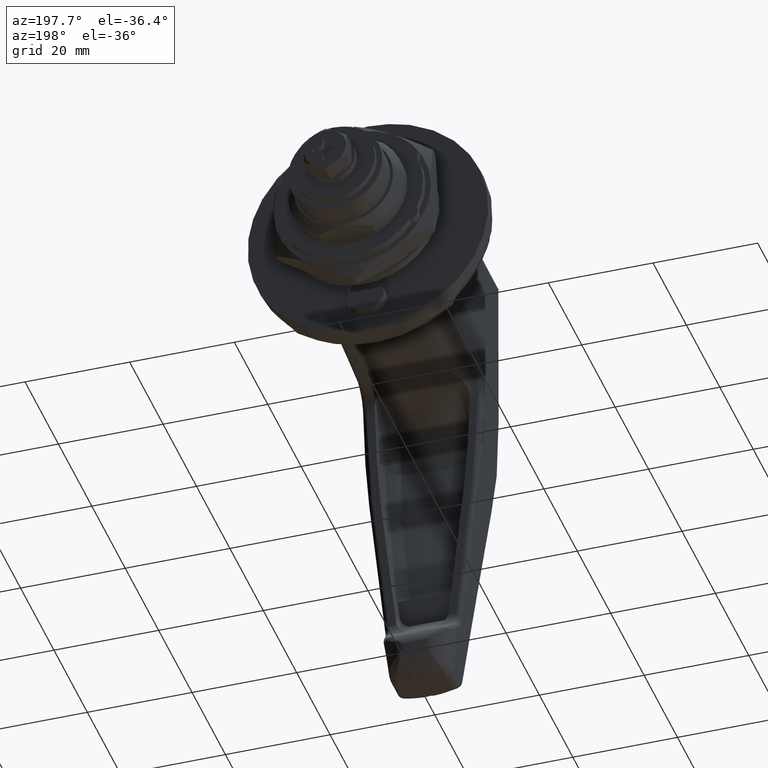
[diagram: clean part render]
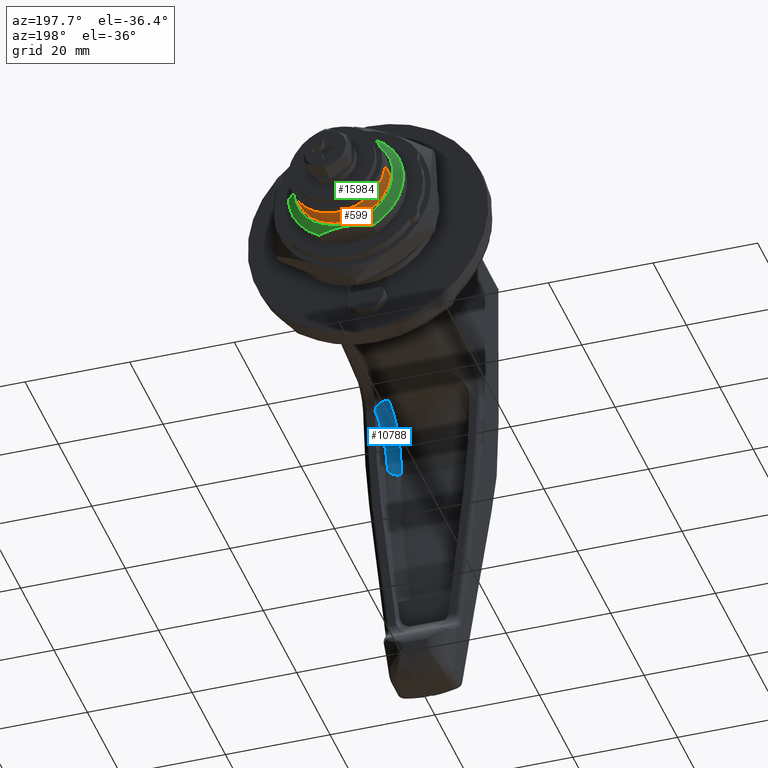
[diagram: same view with three faces highlighted in distinct colors, each labeled with its STEP entity id]
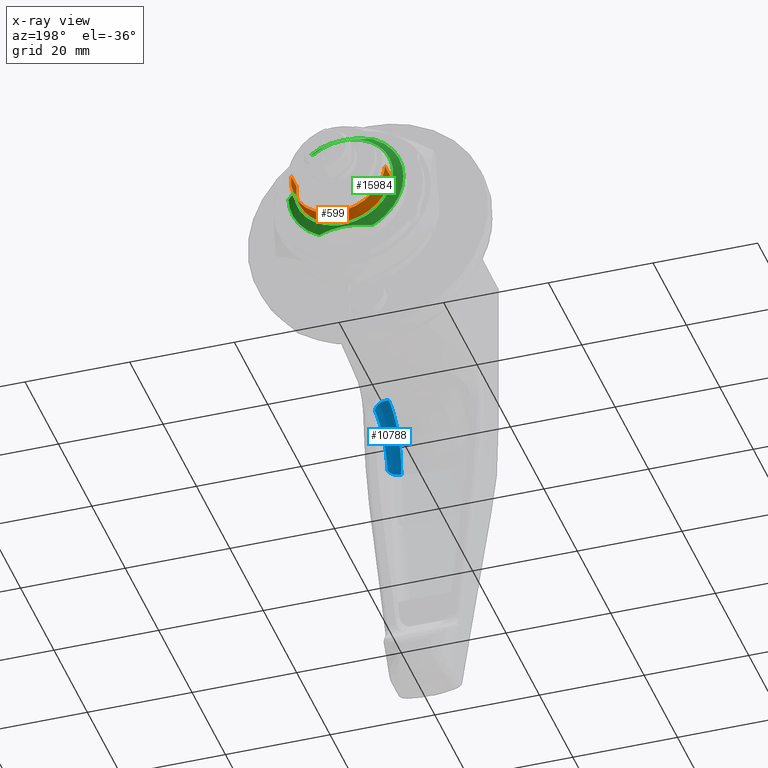
[diagram: x-ray of the same camera — body ghosted, the three highlighted faces saturated]
A machine part, auxiliary view with three faces highlighted in distinct colors.
The next image is the same camera in x-ray (body ghosted, the three faces saturated) — at least one of them is partly hidden behind the body in this view.
Their STEP definitions:

[orange] entity #599 — the highlighted face is a freeform B-spline surface patch.
#493=CARTESIAN_POINT('',(88.288713000000172,-8.921320672684832,1.194937932110707));
#494=CARTESIAN_POINT('',(88.288713000000172,-8.929225431262870,1.128436034636437));
#495=CARTESIAN_POINT('',(88.288713000000172,-8.967488539037619,0.806532557741814));
#496=CARTESIAN_POINT('',(88.288713000000186,-8.983213185796970,0.549436855813723));
#497=CARTESIAN_POINT('',(88.288713000000186,-9.532650041610694,-8.433776329983246));
#498=CARTESIAN_POINT('',(88.288713000000186,-0.549436855813723,-8.983213185796970));
#499=CARTESIAN_POINT('',(88.288713000000186,8.433776329983246,-9.532650041610694));
#500=CARTESIAN_POINT('',(88.288713000000158,8.987164704234168,-0.484830100454323));
#501=CARTESIAN_POINT('',(88.288713000000200,8.991092749449317,-0.420607128883147));
#502=CARTESIAN_POINT('',(91.650713000000209,-8.921320672684832,1.194937932110707));
#503=CARTESIAN_POINT('',(91.650713000000209,-8.929225431262870,1.128436034636437));
#504=CARTESIAN_POINT('',(91.650713000000195,-8.967488539037619,0.806532557741814));
#505=CARTESIAN_POINT('',(91.650713000000195,-8.983213185796970,0.549436855813723));
#506=CARTESIAN_POINT('',(91.650713000000195,-9.532650041610694,-8.433776329983246));
#507=CARTESIAN_POINT('',(91.650713000000195,-0.549436855813723,-8.983213185796970));
#508=CARTESIAN_POINT('',(91.650713000000195,8.433776329983246,-9.532650041610694));
#509=CARTESIAN_POINT('',(91.650713000000167,8.987164704234168,-0.484830100454323));
#510=CARTESIAN_POINT('',(91.650713000000209,8.991092749449317,-0.420607128883147));
#518=(BOUNDED_SURFACE()B_SPLINE_SURFACE(2,1,((#493,#502),(#494,#503),(#495,#504),(#496,#505),(#497,#506),(#498,#507),(#499,#508),(#500,#509),(#501,#510)),.UNSPECIFIED.,.F.,.F.,.U.)B_SPLINE_SURFACE_WITH_KNOTS((3,1,2,2,1,3),(2,2),(0.0,0.152099315940655,0.748566845757924,15.660255091189621,30.571943336621320,30.724062431251479),(0.0,3.362000000000042),.UNSPECIFIED.)GEOMETRIC_REPRESENTATION_ITEM()RATIONAL_B_SPLINE_SURFACE(((0.972008777400780,0.972008777400780),(0.974757289097954,0.974757289097954),(0.988284271247462,0.988284271247462),(1.0,1.0),(0.707106781186548,0.707106781186548),(1.0,1.0),(0.707106781186548,0.707106781186548),(1.002987901204471,1.002987901204471),(1.005975802408941,1.005975802408941)))REPRESENTATION_ITEM('')SURFACE());
#519=CARTESIAN_POINT('',(91.568713000000173,-8.937085737238114,1.062308112205726));
#520=VERTEX_POINT('',#519);
#521=CARTESIAN_POINT('',(91.568713000000187,0.0,-9.000000000000169));
#522=VERTEX_POINT('',#521);
#523=CARTESIAN_POINT('',(91.568713000000173,-8.937085737238114,1.062308112205726));
#524=CARTESIAN_POINT('',(91.568713000000187,-9.000000000000169,0.533017077165199));
#525=CARTESIAN_POINT('',(91.568713000000187,-9.000000000000169,0.0));
#526=CARTESIAN_POINT('',(91.568713000000187,-9.000000000000171,-9.000000000000171));
#527=CARTESIAN_POINT('',(91.568713000000187,0.0,-9.000000000000169));
#535=(BOUNDED_CURVE()B_SPLINE_CURVE(2,(#523,#524,#525,#526,#527),.UNSPECIFIED.,.F.,.U.)B_SPLINE_CURVE_WITH_KNOTS((3,2,3),(0.229562473504492,0.250000000000000,0.500000000000000),.UNSPECIFIED.)CURVE()GEOMETRIC_REPRESENTATION_ITEM()RATIONAL_B_SPLINE_CURVE((0.956026754166026,0.976055948320581,1.0,0.707106781186548,1.0))REPRESENTATION_ITEM(''));
#536=EDGE_CURVE('',#520,#522,#535,.T.);
#537=ORIENTED_EDGE('',*,*,#536,.F.);
#538=CARTESIAN_POINT('',(88.368713000000184,-8.937085737238114,1.062308112205726));
#539=VERTEX_POINT('',#538);
#540=CARTESIAN_POINT('',(88.368713000000184,-8.937085737238114,1.062308112205726));
#541=CARTESIAN_POINT('',(91.568713000000173,-8.937085737238114,1.062308112205726));
#542=QUASI_UNIFORM_CURVE('',1,(#540,#541),.UNSPECIFIED.,.F.,.U.);
#543=EDGE_CURVE('',#539,#520,#542,.T.);
#544=ORIENTED_EDGE('',*,*,#543,.F.);
#545=CARTESIAN_POINT('',(88.368713000000199,0.0,-9.000000000000169));
#546=VERTEX_POINT('',#545);
#547=CARTESIAN_POINT('',(88.368713000000184,-8.937085737238114,1.062308112205726));
#548=CARTESIAN_POINT('',(88.368713000000184,-9.000000000000169,0.533017077165199));
#549=CARTESIAN_POINT('',(88.368713000000199,-9.000000000000169,0.0));
#550=CARTESIAN_POINT('',(88.368713000000199,-9.000000000000171,-9.000000000000171));
#551=CARTESIAN_POINT('',(88.368713000000199,0.0,-9.000000000000169));
#559=(BOUNDED_CURVE()B_SPLINE_CURVE(2,(#547,#548,#549,#550,#551),.UNSPECIFIED.,.F.,.U.)B_SPLINE_CURVE_WITH_KNOTS((3,2,3),(0.229562473504492,0.250000000000000,0.500000000000000),.UNSPECIFIED.)CURVE()GEOMETRIC_REPRESENTATION_ITEM()RATIONAL_B_SPLINE_CURVE((0.956026754166026,0.976055948320581,1.0,0.707106781186548,1.0))REPRESENTATION_ITEM(''));
#560=EDGE_CURVE('',#539,#546,#559,.T.);
#561=ORIENTED_EDGE('',*,*,#560,.T.);
#562=CARTESIAN_POINT('',(88.368713000000199,8.983214216414687,-0.549420004844264));
#563=VERTEX_POINT('',#562);
#564=CARTESIAN_POINT('',(88.368713000000199,0.0,-9.000000000000169));
#565=CARTESIAN_POINT('',(88.368713000000199,8.466370513272327,-9.000000000000169));
#566=CARTESIAN_POINT('',(88.368713000000199,8.983214216414687,-0.549420004844264));
#574=(BOUNDED_CURVE()B_SPLINE_CURVE(2,(#564,#565,#566),.UNSPECIFIED.,.F.,.U.)B_SPLINE_CURVE_WITH_KNOTS((3,3),(0.500000000000000,0.739333285910273),.UNSPECIFIED.)CURVE()GEOMETRIC_REPRESENTATION_ITEM()RATIONAL_B_SPLINE_CURVE((1.0,0.719603614082159,0.976072735356974))REPRESENTATION_ITEM(''));
#575=EDGE_CURVE('',#546,#563,#574,.T.);
#576=ORIENTED_EDGE('',*,*,#575,.T.);
#577=CARTESIAN_POINT('',(91.568713000000201,8.983213185794718,-0.549436855850556));
#578=VERTEX_POINT('',#577);
#579=CARTESIAN_POINT('',(88.368713000000199,8.983214216414687,-0.549420004844264));
#580=CARTESIAN_POINT('',(91.568713000000201,8.983213185794718,-0.549436855850556));
#581=QUASI_UNIFORM_CURVE('',1,(#579,#580),.UNSPECIFIED.,.F.,.U.);
#582=EDGE_CURVE('',#563,#578,#581,.T.);
#583=ORIENTED_EDGE('',*,*,#582,.T.);
#584=CARTESIAN_POINT('',(91.568713000000187,0.0,-9.000000000000169));
#585=CARTESIAN_POINT('',(91.568713000000187,8.466354602081822,-9.000000000000169));
#586=CARTESIAN_POINT('',(91.568713000000201,8.983213185794718,-0.549436855850556));
#594=(BOUNDED_CURVE()B_SPLINE_CURVE(2,(#584,#585,#586),.UNSPECIFIED.,.F.,.U.)B_SPLINE_CURVE_WITH_KNOTS((3,3),(0.500000000000000,0.739332962240553),.UNSPECIFIED.)CURVE()GEOMETRIC_REPRESENTATION_ITEM()RATIONAL_B_SPLINE_CURVE((1.0,0.719603993284824,0.976072041670168))REPRESENTATION_ITEM(''));
#595=EDGE_CURVE('',#522,#578,#594,.T.);
#596=ORIENTED_EDGE('',*,*,#595,.F.);
#597=EDGE_LOOP('',(#537,#544,#561,#576,#583,#596));
#598=FACE_OUTER_BOUND('',#597,.T.);
#599=ADVANCED_FACE('',(#598),#518,.T.);

[blue] entity #10788 — the highlighted face is a freeform B-spline surface patch.
#10508=CARTESIAN_POINT('',(-39.333117843114103,-8.831410608772609,-25.158700089596849));
#10509=VERTEX_POINT('',#10508);
#10510=CARTESIAN_POINT('',(-41.331410608772551,-6.833117843114151,-25.158700089596849));
#10511=VERTEX_POINT('',#10510);
#10512=CARTESIAN_POINT('',(-39.333117843114103,-8.831410608772607,-25.158700089596859));
#10513=CARTESIAN_POINT('',(-41.328006320256804,-8.828006320256858,-25.241038335586477));
#10514=CARTESIAN_POINT('',(-41.331410608772558,-6.833117843114151,-25.158700089596859));
#10522=(BOUNDED_CURVE()B_SPLINE_CURVE(2,(#10512,#10513,#10514),.UNSPECIFIED.,.F.,.U.)CURVE()GEOMETRIC_REPRESENTATION_ITEM()QUASI_UNIFORM_CURVE()RATIONAL_B_SPLINE_CURVE((1.0,0.707709864873759,1.0))REPRESENTATION_ITEM(''));
#10523=EDGE_CURVE('',#10509,#10511,#10522,.T.);
#10555=CARTESIAN_POINT('',(-32.548025646062356,-6.417647187119143,-14.613107388346453));
#10556=CARTESIAN_POINT('',(-32.573232998046528,-6.417824825438465,-14.616392705329506));
#10557=CARTESIAN_POINT('',(-32.598440365108097,-6.418002463864033,-14.619678024277619));
#10558=CARTESIAN_POINT('',(-33.253837173630195,-6.422621100031212,-14.705097003114750));
#10559=CARTESIAN_POINT('',(-33.865254533106103,-6.431573230930810,-14.846504662455724));
#10560=CARTESIAN_POINT('',(-34.755536906230802,-6.450655071228795,-15.143099416156218));
#10561=CARTESIAN_POINT('',(-35.047801043604359,-6.457959397837252,-15.256145457496475));
#10562=CARTESIAN_POINT('',(-35.623217959514257,-6.474276933745760,-15.511025917120607));
#10563=CARTESIAN_POINT('',(-35.907408005555432,-6.483334532200020,-15.653587475674072));
#10564=CARTESIAN_POINT('',(-36.729003979493157,-6.512167086660505,-16.115992054843737));
#10565=CARTESIAN_POINT('',(-37.240836949331474,-6.533708160643559,-16.472018693853041));
#10566=CARTESIAN_POINT('',(-38.195093229206037,-6.579184741243886,-17.276805054570112));
#10567=CARTESIAN_POINT('',(-38.639808627840694,-6.603303820965008,-17.729820175962555));
#10568=CARTESIAN_POINT('',(-39.426261650204026,-6.650028031990056,-18.695075600091087));
#10569=CARTESIAN_POINT('',(-39.772529572371042,-6.672823874220127,-19.210114592445603));
#10570=CARTESIAN_POINT('',(-40.221857239401452,-6.704833503672138,-20.031188403519675));
#10571=CARTESIAN_POINT('',(-40.360340526525029,-6.715180878194455,-20.314296313868471));
#10572=CARTESIAN_POINT('',(-40.608768996496934,-6.734602886786547,-20.886921756852807));
#10573=CARTESIAN_POINT('',(-40.719279773092715,-6.743714134545338,-21.177214715109105));
#10574=CARTESIAN_POINT('',(-41.010776068131634,-6.769090688850012,-22.059729241129236));
#10575=CARTESIAN_POINT('',(-41.152055842815287,-6.783395252515284,-22.663495827904686));
#10576=CARTESIAN_POINT('',(-41.326032616078258,-6.806015365797347,-23.902564227524991));
#10577=CARTESIAN_POINT('',(-41.357094415294306,-6.814178795931657,-24.532312553036313));
#10578=CARTESIAN_POINT('',(-41.330408225175212,-6.819209997763043,-25.183151695092008));
#10579=CARTESIAN_POINT('',(-41.329381773060604,-6.819403516872955,-25.208185437662646));
#10580=CARTESIAN_POINT('',(-41.328355316485819,-6.819597036823754,-25.233219289010741));
#10581=CARTESIAN_POINT('',(-32.548301396231849,-6.425289503552213,-14.610867403635096));
#10582=CARTESIAN_POINT('',(-32.573514660482786,-6.425467133203112,-14.614154247610941));
#10583=CARTESIAN_POINT('',(-32.598727932289336,-6.425644762907249,-14.617441092571759));
#10584=CARTESIAN_POINT('',(-33.254275623969981,-6.430263153706062,-14.702899403714742));
#10585=CARTESIAN_POINT('',(-33.865827392065739,-6.439214332164756,-14.844378133310045));
#10586=CARTESIAN_POINT('',(-34.756282345149415,-6.458292714579645,-15.141117627057030));
#10587=CARTESIAN_POINT('',(-35.048599410461684,-6.465595437974527,-15.254218554770942));
#10588=CARTESIAN_POINT('',(-35.624111015276256,-6.481908630810737,-15.509219733112252));
#10589=CARTESIAN_POINT('',(-35.908342896460617,-6.490963420679638,-15.651847555613049));
#10590=CARTESIAN_POINT('',(-36.730043847982998,-6.519785168554834,-16.114460559887849));
#10591=CARTESIAN_POINT('',(-37.241919396203912,-6.541316001560373,-16.470638990123351));
#10592=CARTESIAN_POINT('',(-38.196208301690682,-6.586763782091015,-17.275735164704297));
#10593=CARTESIAN_POINT('',(-38.640912430883859,-6.610863654818115,-17.728909790954312));
#10594=CARTESIAN_POINT('',(-39.427297441150330,-6.657540413815106,-18.694463673434694));
#10595=CARTESIAN_POINT('',(-39.773508386254612,-6.680307649201205,-19.209642913952294));
#10596=CARTESIAN_POINT('',(-40.222725518677073,-6.712267447806776,-20.030905624282457));
#10597=CARTESIAN_POINT('',(-40.361167173506431,-6.722596611193091,-20.314073497508314));
#10598=CARTESIAN_POINT('',(-40.609506588048802,-6.741980249971777,-20.886809056787861));
#10599=CARTESIAN_POINT('',(-40.719969816317032,-6.751071286767519,-21.177152312627086));
#10600=CARTESIAN_POINT('',(-41.011316242455983,-6.776383618862591,-22.059803963460087));
#10601=CARTESIAN_POINT('',(-41.152487739797273,-6.790641901406310,-22.663641896803092));
#10602=CARTESIAN_POINT('',(-41.326241586554282,-6.813162300317285,-23.902813583826578));
#10603=CARTESIAN_POINT('',(-41.357189828150176,-6.821272772642990,-24.532592463316615));
#10604=CARTESIAN_POINT('',(-41.330391942469404,-6.826248222864110,-25.183442004994749));
#10605=CARTESIAN_POINT('',(-41.329361224305970,-6.826439591951034,-25.208475414431156));
#10606=CARTESIAN_POINT('',(-41.328330503899892,-6.826630961454335,-25.233508878334899));
#10607=CARTESIAN_POINT('',(-32.640941440729684,-8.992774904490231,-13.858330120584245));
#10608=CARTESIAN_POINT('',(-32.668136210975277,-8.992820521066777,-13.862167781702762));
#10609=CARTESIAN_POINT('',(-32.695328262749797,-8.992866133083354,-13.866005059197130));
#10610=CARTESIAN_POINT('',(-33.401368729803508,-8.994050447152542,-13.965639806026886));
#10611=CARTESIAN_POINT('',(-34.057510447957185,-8.995986134705550,-14.132824969640911));
#10612=CARTESIAN_POINT('',(-35.004288177999840,-8.999319286815613,-14.481780901018359));
#10613=CARTESIAN_POINT('',(-35.313629735252583,-9.000498007058617,-14.614553154700321));
#10614=CARTESIAN_POINT('',(-35.919105491990088,-9.002813346833248,-14.912600429973624));
#10615=CARTESIAN_POINT('',(-36.216300098339651,-9.003953050440311,-15.078710186825013));
#10616=CARTESIAN_POINT('',(-37.069539182674198,-9.006929733155980,-15.614459456189149));
#10617=CARTESIAN_POINT('',(-37.592930273754945,-9.008351552680557,-16.023235030397235));
#10618=CARTESIAN_POINT('',(-38.552490313349658,-9.008378481222037,-16.933889662384761));
#10619=CARTESIAN_POINT('',(-38.990759460372573,-9.006930084717391,-17.440366021483008));
#10620=CARTESIAN_POINT('',(-39.750222230623379,-8.999648469502011,-18.503685517471673));
#10621=CARTESIAN_POINT('',(-40.076099385395850,-8.993845479877541,-19.063827995551460));
#10622=CARTESIAN_POINT('',(-40.487697948028384,-8.980881121201552,-19.944610000793794));
#10623=CARTESIAN_POINT('',(-40.612338509252098,-8.975819092708624,-20.246372188406742));
#10624=CARTESIAN_POINT('',(-40.831695550549142,-8.964305963856523,-20.852859765426839));
#10625=CARTESIAN_POINT('',(-40.926948183467921,-8.957848051200577,-21.158434697001475));
#10626=CARTESIAN_POINT('',(-41.171295206279552,-8.936270407361247,-22.081933858429473));
#10627=CARTESIAN_POINT('',(-41.279334026626515,-8.918951526273945,-22.706541704299177));
#10628=CARTESIAN_POINT('',(-41.386611140508819,-8.877842715367985,-23.974850213068468));
#10629=CARTESIAN_POINT('',(-41.384532298665988,-8.854194304195522,-24.612806377018938));
#10630=CARTESIAN_POINT('',(-41.325763343998503,-8.826967169270349,-25.265966862388314));
#10631=CARTESIAN_POINT('',(-41.323521745665182,-8.825928656664258,-25.290880074877315));
#10632=CARTESIAN_POINT('',(-41.321281523987508,-8.824890781850499,-25.315777987161169));
#10633=CARTESIAN_POINT('',(-32.310783989369789,-8.999404953581481,-16.515055286114009));
#10634=CARTESIAN_POINT('',(-32.330936793453972,-8.999411460716527,-16.517750436075918));
#10635=CARTESIAN_POINT('',(-32.351089603568262,-8.999417967853509,-16.520445586844254));
#10636=CARTESIAN_POINT('',(-32.875064761302490,-8.999587154091451,-16.590519786965618));
#10637=CARTESIAN_POINT('',(-33.363830047492485,-8.999849620703316,-16.706848467454076));
#10638=CARTESIAN_POINT('',(-34.075443523868174,-9.000010813633898,-16.950974416636249));
#10639=CARTESIAN_POINT('',(-34.309039876194603,-9.000023079465569,-17.044036888633588));
#10640=CARTESIAN_POINT('',(-34.768921879289671,-8.999864839798713,-17.253851171246428));
#10641=CARTESIAN_POINT('',(-34.996036129727031,-8.999692012094199,-17.371201172527687));
#10642=CARTESIAN_POINT('',(-35.652580322278041,-8.998732275079433,-17.751756227256028));
#10643=CARTESIAN_POINT('',(-36.061530941039010,-8.997514212493478,-18.044671683622251));
#10644=CARTESIAN_POINT('',(-36.823859906236223,-8.992906071924692,-18.706311340600891));
#10645=CARTESIAN_POINT('',(-37.179067110170976,-8.989459821550819,-19.078524046380895));
#10646=CARTESIAN_POINT('',(-37.807111640874218,-8.979529839854804,-19.870937809318306));
#10647=CARTESIAN_POINT('',(-38.083568957327515,-8.973047743365965,-20.293443477780016));
#10648=CARTESIAN_POINT('',(-38.442212146675089,-8.960294213683044,-20.966428339665857));
#10649=CARTESIAN_POINT('',(-38.552726754176014,-8.955510420923313,-21.198383016977704));
#10650=CARTESIAN_POINT('',(-38.750942175970984,-8.944981749770811,-21.667354062179463));
#10651=CARTESIAN_POINT('',(-38.839094708745499,-8.939228381654692,-21.905006728117772));
#10652=CARTESIAN_POINT('',(-39.071546785928426,-8.920405366999953,-22.627210456660350));
#10653=CARTESIAN_POINT('',(-39.184108224810139,-8.905776821774365,-23.120936188211466));
#10654=CARTESIAN_POINT('',(-39.322443701693622,-8.871782326587445,-24.133450400999227));
#10655=CARTESIAN_POINT('',(-39.346915388361587,-8.852537359368766,-24.647697197979674));
#10656=CARTESIAN_POINT('',(-39.325233414811080,-8.830578027871534,-25.178838135566767));
#10657=CARTESIAN_POINT('',(-39.324399468310723,-8.829733413445169,-25.199267231888680));
#10658=CARTESIAN_POINT('',(-39.323565519998539,-8.828888797183831,-25.219696372593781));
#10659=CARTESIAN_POINT('',(-32.309802701618928,-8.999424659288369,-16.522951554550957));
#10660=CARTESIAN_POINT('',(-32.329934525307387,-8.999431051168118,-16.525643705656936));
#10661=CARTESIAN_POINT('',(-32.350066361019529,-8.999437443051683,-16.528335858370806));
#10662=CARTESIAN_POINT('',(-32.873498288086537,-8.999603633357507,-16.598332390387451));
#10663=CARTESIAN_POINT('',(-33.361759993680487,-8.999861149966527,-16.714529767301006));
#10664=CARTESIAN_POINT('',(-34.072655789060924,-9.000012889108389,-16.958385189448251));
#10665=CARTESIAN_POINT('',(-34.306018158303303,-9.000021650925168,-17.051344561908721));
#10666=CARTESIAN_POINT('',(-34.765444996551309,-8.999855926775519,-17.260928523243560));
#10667=CARTESIAN_POINT('',(-34.992337145130371,-8.999679095614148,-17.378150397500512));
#10668=CARTESIAN_POINT('',(-35.648246610952000,-8.998707203485687,-17.758293062927692));
#10669=CARTESIAN_POINT('',(-36.056815388677968,-8.997480841677644,-18.050896180511650));
#10670=CARTESIAN_POINT('',(-36.818457721944554,-8.992857718727787,-18.711850378042854));
#10671=CARTESIAN_POINT('',(-37.173359479562293,-8.989404782510233,-19.083684967264482));
#10672=CARTESIAN_POINT('',(-37.800888262763358,-8.979465404078459,-19.875316833358404));
#10673=CARTESIAN_POINT('',(-38.077133091426134,-8.972980566754080,-20.297415131232555));
#10674=CARTESIAN_POINT('',(-38.435519266163617,-8.960226852808665,-20.969771754732360));
#10675=CARTESIAN_POINT('',(-38.545958242115894,-8.955443680437121,-21.201511614762548));
#10676=CARTESIAN_POINT('',(-38.744044991210757,-8.944917694762413,-21.670053910090090));
#10677=CARTESIAN_POINT('',(-38.832144319341332,-8.939166397441966,-21.907492039657768));
#10678=CARTESIAN_POINT('',(-39.064467392517280,-8.920351877324181,-22.629048880501685));
#10679=CARTESIAN_POINT('',(-39.176984765727525,-8.905732029719800,-23.122345068413111));
#10680=CARTESIAN_POINT('',(-39.315309103743232,-8.871761379431437,-24.133998587427552));
#10681=CARTESIAN_POINT('',(-39.339815536951342,-8.852531585927245,-24.647818771197450));
#10682=CARTESIAN_POINT('',(-39.318206257673012,-8.830590711546206,-25.178532083032543));
#10683=CARTESIAN_POINT('',(-39.317375082882670,-8.829746782351304,-25.198945328658141));
#10684=CARTESIAN_POINT('',(-39.316543904486032,-8.828902849494783,-25.219358662852279));
#10692=(BOUNDED_SURFACE()B_SPLINE_SURFACE(3,2,((#10555,#10581,#10607,#10633,#10659),(#10556,#10582,#10608,#10634,#10660),(#10557,#10583,#10609,#10635,#10661),(#10558,#10584,#10610,#10636,#10662),(#10559,#10585,#10611,#10637,#10663),(#10560,#10586,#10612,#10638,#10664),(#10561,#10587,#10613,#10639,#10665),(#10562,#10588,#10614,#10640,#10666),(#10563,#10589,#10615,#10641,#10667),(#10564,#10590,#10616,#10642,#10668),(#10565,#10591,#10617,#10643,#10669),(#10566,#10592,#10618,#10644,#10670),(#10567,#10593,#10619,#10645,#10671),(#10568,#10594,#10620,#10646,#10672),(#10569,#10595,#10621,#10647,#10673),(#10570,#10596,#10622,#10648,#10674),(#10571,#10597,#10623,#10649,#10675),(#10572,#10598,#10624,#10650,#10676),(#10573,#10599,#10625,#10651,#10677),(#10574,#10600,#10626,#10652,#10678),(#10575,#10601,#10627,#10653,#10679),(#10576,#10602,#10628,#10654,#10680),(#10577,#10603,#10629,#10655,#10681),(#10578,#10604,#10630,#10656,#10682),(#10579,#10605,#10631,#10657,#10683),(#10580,#10606,#10632,#10658,#10684)),.UNSPECIFIED.,.F.,.F.,.U.)B_SPLINE_SURFACE_WITH_KNOTS((4,2,2,2,2,2,2,2,2,2,2,2,4),(3,1,1,3),(0.0,0.076281698587635,1.983324080670703,2.936845271712237,3.890366462753771,5.797408844836840,7.704451226919908,9.611493609002977,10.565014800044510,11.518535991086051,13.425578373169120,15.332620755252179,15.408902448855420),(0.0,0.020046060062172,4.022275903478657,4.042292095508789),.UNSPECIFIED.)GEOMETRIC_REPRESENTATION_ITEM()RATIONAL_B_SPLINE_SURFACE(((1.004010480632225,1.002005240316112,0.599650374613436,1.002002252567806,1.004004505135611),(1.004010180365057,1.002005090182529,0.599680349037705,1.002002102657916,1.004004205315833),(1.004009880097890,1.002004940048945,0.599710323461975,1.002001952748027,1.004003905496055),(1.004002073151862,1.002001036575931,0.600489658460520,1.001998055091072,1.003996110182144),(1.003986413485243,1.001993206742622,0.602052897942126,1.001990236923981,1.003980473847961),(1.003951996874739,1.001975998437370,0.605488565231416,1.001973054258591,1.003946108517181),(1.003938700299901,1.001969350149950,0.606815907074862,1.001966415876922,1.003932831753843),(1.003908606455044,1.001954303227522,0.609820050622592,1.001951391373959,1.003902782747919),(1.003891723879237,1.001945861939618,0.611505368049569,1.001942962663323,1.003885925326646),(1.003837172005418,1.001918586002709,0.616951055050800,1.001915727366747,1.003831454733493),(1.003795430664110,1.001897715332055,0.621117919795539,1.001894887792770,1.003789775585539),(1.003703303127117,1.001851651563559,0.630314629194001,1.001848892657916,1.003697785315831),(1.003652472458842,1.001826236229421,0.635388843700564,1.001823515191868,1.003647030383736),(1.003547383800917,1.001773691900458,0.645879407972222,1.001771049152390,1.003542098304780),(1.003492781049780,1.001746390524890,0.651330173844748,1.001743788455058,1.003487576910115),(1.003408437005855,1.001704218502928,0.659749889456349,1.001701679268151,1.003403358536301),(1.003379782957980,1.001689891478990,0.662610304051092,1.001687373591052,1.003374747182104),(1.003322702557157,1.001661351278579,0.668308403401772,1.001658875914689,1.003317751829377),(1.003294192539142,1.001647096269571,0.671154440093897,1.001644642145219,1.003289284290438),(1.003208776915678,1.001604388457839,0.679681127040384,1.001601997966854,1.003203995933708),(1.003151996161785,1.001575998080893,0.685349313882452,1.001573649890723,1.003147299781447),(1.003038586564209,1.001519293282104,0.696670523001426,1.001517029580395,1.003034059160790),(1.002982474654922,1.001491237327461,0.702271941864383,1.001489015428288,1.002978030856576),(1.002925821592579,1.001462910796290,0.707927381789345,1.001460731102804,1.002921462205608),(1.002923642628689,1.001461821314345,0.708144898704930,1.001459643244154,1.002919286488309),(1.002921463664799,1.001460731832400,0.708362415620514,1.001458555385505,1.002917110771010)))REPRESENTATION_ITEM('')SURFACE());
#10693=CARTESIAN_POINT('',(-32.372290811278852,-8.999405037536199,-16.515221886609449));
#10694=VERTEX_POINT('',#10693);
#10695=CARTESIAN_POINT('',(-32.624235852724198,-6.433495325306279,-14.618483568802700));
#10696=VERTEX_POINT('',#10695);
#10697=CARTESIAN_POINT('',(-32.372290811278852,-8.999405037536208,-16.515221886609449));
#10698=CARTESIAN_POINT('',(-32.503590320799297,-8.996970709989716,-15.523472818697178));
#10699=CARTESIAN_POINT('',(-32.582335927751402,-8.194993752973534,-14.930645870375340));
#10700=CARTESIAN_POINT('',(-32.661081534703513,-7.393016795957355,-14.337818922053509));
#10701=CARTESIAN_POINT('',(-32.624235852724198,-6.433495325306279,-14.618483568802700));
#10709=(BOUNDED_CURVE()B_SPLINE_CURVE(2,(#10697,#10698,#10699,#10700,#10701),.UNSPECIFIED.,.F.,.U.)B_SPLINE_CURVE_WITH_KNOTS((3,2,3),(0.0,0.500000000000000,1.0),.UNSPECIFIED.)CURVE()GEOMETRIC_REPRESENTATION_ITEM()RATIONAL_B_SPLINE_CURVE((1.0,0.894354599106596,1.0,0.894354599106596,1.0))REPRESENTATION_ITEM(''));
#10710=EDGE_CURVE('',#10694,#10696,#10709,.T.);
#10711=ORIENTED_EDGE('',*,*,#10710,.F.);
#10712=CARTESIAN_POINT('',(-32.372290811278852,-8.999405037536199,-16.515221886609449));
#10713=CARTESIAN_POINT('',(-32.879598970290012,-8.999571581188331,-16.583072045889320));
#10714=CARTESIAN_POINT('',(-33.371298093602228,-8.999841070123903,-16.700445187706489));
#10715=CARTESIAN_POINT('',(-34.086716369720321,-9.000009873503583,-16.946718498240791));
#10716=CARTESIAN_POINT('',(-34.321474406414509,-9.000024168753818,-17.040595376870250));
#10717=CARTESIAN_POINT('',(-34.667972227478359,-8.999906524527182,-17.199302442956419));
#10718=CARTESIAN_POINT('',(-34.782616928206828,-8.999843849392795,-17.255236835590669));
#10719=CARTESIAN_POINT('',(-35.009631535687141,-8.999656571600269,-17.372988574530531));
#10720=CARTESIAN_POINT('',(-35.121237887568327,-8.999532593838961,-17.434404105900409));
#10721=CARTESIAN_POINT('',(-35.670015921336933,-8.998726643726533,-17.753844479941279));
#10722=CARTESIAN_POINT('',(-36.079672714265683,-8.997496085276641,-18.048628466150610));
#10723=CARTESIAN_POINT('',(-36.556423968147172,-8.994589200033055,-18.464290975541559));
#10724=CARTESIAN_POINT('',(-36.649993193978503,-8.993938742105648,-18.549802692297479));
#10725=CARTESIAN_POINT('',(-36.833544752988800,-8.992480798651446,-18.725617643025391));
#10726=CARTESIAN_POINT('',(-36.923633925895487,-8.991672222725894,-18.816033706796929));
#10727=CARTESIAN_POINT('',(-37.187755522154561,-8.988987415505397,-19.093836815424321));
#10728=CARTESIAN_POINT('',(-37.353889990113082,-8.986871145500450,-19.285859071211551));
#10729=CARTESIAN_POINT('',(-37.823748415963088,-8.979377886240714,-19.881495409521790));
#10730=CARTESIAN_POINT('',(-38.099160022437317,-8.972862841922755,-20.304519536737079));
#10731=CARTESIAN_POINT('',(-38.396587552412733,-8.962202131977694,-20.865400006736319));
#10732=CARTESIAN_POINT('',(-38.453712325012212,-8.959943647841556,-20.979194066868111));
#10733=CARTESIAN_POINT('',(-38.563174798134114,-8.955156178550816,-21.210062865880559));
#10734=CARTESIAN_POINT('',(-38.615181609068479,-8.952641306476227,-21.326448484002832));
#10735=CARTESIAN_POINT('',(-38.762889447752237,-8.944736586616513,-21.677697702540492));
#10736=CARTESIAN_POINT('',(-38.850440562733873,-8.938980423084423,-21.914954181112329));
#10737=CARTESIAN_POINT('',(-39.081219429663037,-8.920159807513613,-22.635739704242472));
#10738=CARTESIAN_POINT('',(-39.192834713648963,-8.905547048882792,-23.128210476141959));
#10739=CARTESIAN_POINT('',(-39.278458143558971,-8.884349366345305,-23.759035493791210));
#10740=CARTESIAN_POINT('',(-39.292872044384012,-8.879957280609606,-23.886117319891330));
#10741=CARTESIAN_POINT('',(-39.316027410708493,-8.870932621044892,-24.140105330983349));
#10742=CARTESIAN_POINT('',(-39.324800736504912,-8.866294084350230,-24.267197490721170));
#10743=CARTESIAN_POINT('',(-39.342745972912688,-8.851998124747789,-24.648766959909420));
#10744=CARTESIAN_POINT('',(-39.343560786442609,-8.841960385280947,-24.903536612922920));
#10745=CARTESIAN_POINT('',(-39.333117843114103,-8.831410608772591,-25.158700089596849));
#10746=B_SPLINE_CURVE_WITH_KNOTS('',3,(#10712,#10713,#10714,#10715,#10716,#10717,#10718,#10719,#10720,#10721,#10722,#10723,#10724,#10725,#10726,#10727,#10728,#10729,#10730,#10731,#10732,#10733,#10734,#10735,#10736,#10737,#10738,#10739,#10740,#10741,#10742,#10743,#10744,#10745),.UNSPECIFIED.,.F.,.U.,(4,2,2,2,2,2,2,2,2,2,2,2,2,2,2,2,4),(0.0,0.125000000000007,0.187500000000010,0.218750000000011,0.250000000000012,0.375000000000013,0.406250000000012,0.437500000000012,0.500000000000011,0.625000000000010,0.656250000000009,0.687500000000008,0.750000000000006,0.875000000000004,0.906250000000003,0.937500000000002,1.0),.UNSPECIFIED.);
#10747=EDGE_CURVE('',#10694,#10509,#10746,.T.);
#10748=ORIENTED_EDGE('',*,*,#10747,.T.);
#10749=ORIENTED_EDGE('',*,*,#10523,.T.);
#10750=CARTESIAN_POINT('',(-41.331410608772551,-6.833117843114151,-25.158700089596849));
#10751=CARTESIAN_POINT('',(-41.344437320498642,-6.830736559522276,-24.843627912378210));
#10752=CARTESIAN_POINT('',(-41.343150942378053,-6.827536288449375,-24.529108881847641));
#10753=CARTESIAN_POINT('',(-41.319946570548552,-6.821500695562965,-24.058152743711869));
#10754=CARTESIAN_POINT('',(-41.308660244404308,-6.819282961446394,-23.901304649979711));
#10755=CARTESIAN_POINT('',(-41.278948238834367,-6.814434606204669,-23.587884424686550));
#10756=CARTESIAN_POINT('',(-41.260481793164693,-6.811799447633585,-23.431094477819709));
#10757=CARTESIAN_POINT('',(-41.150964881409180,-6.797693621314110,-22.653309397588639));
#10758=CARTESIAN_POINT('',(-41.008620412292323,-6.783385546120276,-22.047106271068060));
#10759=CARTESIAN_POINT('',(-40.714934918352903,-6.757973598080122,-21.161261969502021));
#10760=CARTESIAN_POINT('',(-40.603593532893299,-6.748844865069924,-20.869915287126119));
#10761=CARTESIAN_POINT('',(-40.415872420999030,-6.734245950292391,-20.438952483648091));
#10762=CARTESIAN_POINT('',(-40.349726717609933,-6.729220271645673,-20.296077647988181));
#10763=CARTESIAN_POINT('',(-40.210876346267369,-6.718920342978663,-20.013440586932660));
#10764=CARTESIAN_POINT('',(-40.138459205787633,-6.713667078663932,-19.874234710332800));
#10765=CARTESIAN_POINT('',(-39.761652121178912,-6.686951856127981,-19.188597632771039));
#10766=CARTESIAN_POINT('',(-39.413472366038278,-6.664135746115305,-18.673079928954419));
#10767=CARTESIAN_POINT('',(-38.821064343300890,-6.629101490231898,-17.949257432667238));
#10768=CARTESIAN_POINT('',(-38.611782849686627,-6.617287048386616,-17.716225688392239));
#10769=CARTESIAN_POINT('',(-38.168952194395487,-6.593659232782077,-17.267607553203160));
#10770=CARTESIAN_POINT('',(-37.938733756124513,-6.582025033957097,-17.055388059273469));
#10771=CARTESIAN_POINT('',(-37.222358738865779,-6.548052896743576,-16.454027607801262));
#10772=CARTESIAN_POINT('',(-36.710703735560678,-6.526635808174040,-16.099881089196941));
#10773=CARTESIAN_POINT('',(-36.027448742640253,-6.502786992378750,-15.717075328106050));
#10774=CARTESIAN_POINT('',(-35.888538600703157,-6.498162289297878,-15.643504041289900));
#10775=CARTESIAN_POINT('',(-35.606444364485512,-6.489252212853669,-15.502652793399790));
#10776=CARTESIAN_POINT('',(-35.464275484698263,-6.484998829866181,-15.435876392930460));
#10777=CARTESIAN_POINT('',(-35.034464003723890,-6.472876106223533,-15.246295499516650));
#10778=CARTESIAN_POINT('',(-34.452583472425083,-6.458412423894069,-15.022136261256080));
#10779=CARTESIAN_POINT('',(-33.853388321256467,-6.447691286235353,-14.854263794628091));
#10780=CARTESIAN_POINT('',(-33.245449674593239,-6.439014902616786,-14.714805120221889));
#10781=CARTESIAN_POINT('',(-32.937109508238017,-6.435698894858096,-14.659279737870481));
#10782=CARTESIAN_POINT('',(-32.624235852724198,-6.433495325306279,-14.618483568802700));
#10783=B_SPLINE_CURVE_WITH_KNOTS('',3,(#10750,#10751,#10752,#10753,#10754,#10755,#10756,#10757,#10758,#10759,#10760,#10761,#10762,#10763,#10764,#10765,#10766,#10767,#10768,#10769,#10770,#10771,#10772,#10773,#10774,#10775,#10776,#10777,#10778,#10779,#10780,#10781,#10782),.UNSPECIFIED.,.F.,.U.,(4,2,2,2,2,2,2,2,2,2,2,2,2,2,1,2,4),(0.0,0.062499999999999,0.093749999999999,0.124999999999998,0.249999999999997,0.312499999999995,0.343749999999995,0.374999999999995,0.499999999999994,0.562499999999994,0.624999999999995,0.749999999999996,0.781249999999997,0.812499999999997,0.874999999999998,0.937499999999999,1.0),.UNSPECIFIED.);
#10784=EDGE_CURVE('',#10511,#10696,#10783,.T.);
#10785=ORIENTED_EDGE('',*,*,#10784,.T.);
#10786=EDGE_LOOP('',(#10711,#10748,#10749,#10785));
#10787=FACE_OUTER_BOUND('',#10786,.T.);
#10788=ADVANCED_FACE('',(#10787),#10692,.F.);

[green] entity #15984 — the highlighted face is a freeform B-spline surface patch.
#15780=CARTESIAN_POINT('',(14.737500000000203,-5.753635694917756,7.512295424180827));
#15781=CARTESIAN_POINT('',(14.737500000000207,-3.346867213213764,9.355629353935742));
#15782=CARTESIAN_POINT('',(14.737500000000200,-0.316999195615072,9.457188681631520));
#15783=CARTESIAN_POINT('',(14.737500000000205,9.140189486016448,9.774187877246591));
#15784=CARTESIAN_POINT('',(14.737500000000200,9.457188681631520,0.316999195615072));
#15785=CARTESIAN_POINT('',(14.737500000000205,9.774187877246591,-9.140189486016448));
#15786=CARTESIAN_POINT('',(14.737500000000200,0.316999195615072,-9.457188681631520));
#15787=CARTESIAN_POINT('',(14.737500000000205,-9.140189486016448,-9.774187877246591));
#15788=CARTESIAN_POINT('',(14.737500000000200,-9.457188681631520,-0.316999195615072));
#15789=CARTESIAN_POINT('',(13.161562500000196,-6.711878257978206,8.763434982441858));
#15790=CARTESIAN_POINT('',(13.161562500000196,-3.904273136471263,10.913768020775175));
#15791=CARTESIAN_POINT('',(13.161562500000199,-0.369794008808164,11.032241605061770));
#15792=CARTESIAN_POINT('',(13.161562500000198,10.662447596253603,11.402035613869929));
#15793=CARTESIAN_POINT('',(13.161562500000199,11.032241605061770,0.369794008808164));
#15794=CARTESIAN_POINT('',(13.161562500000198,11.402035613869929,-10.662447596253603));
#15795=CARTESIAN_POINT('',(13.161562500000199,0.369794008808164,-11.032241605061770));
#15796=CARTESIAN_POINT('',(13.161562500000198,-10.662447596253603,-11.402035613869929));
#15797=CARTESIAN_POINT('',(13.161562500000199,-11.032241605061770,-0.369794008808164));
#15805=(BOUNDED_SURFACE()B_SPLINE_SURFACE(2,1,((#15780,#15789),(#15781,#15790),(#15782,#15791),(#15783,#15792),(#15784,#15793),(#15785,#15794),(#15786,#15795),(#15787,#15796),(#15788,#15797)),.UNSPECIFIED.,.F.,.F.,.U.)B_SPLINE_SURFACE_WITH_KNOTS((3,2,2,2,3),(2,2),(0.0,7.315632831852418,25.604714911483459,43.893796991114513,62.182879070745557),(0.0,2.228712185952356),.UNSPECIFIED.)GEOMETRIC_REPRESENTATION_ITEM()RATIONAL_B_SPLINE_SURFACE(((0.859411254969543,0.859411254969543),(0.882842712474619,0.882842712474619),(1.0,1.0),(0.707106781186548,0.707106781186548),(1.0,1.0),(0.707106781186548,0.707106781186548),(1.0,1.0),(0.707106781186548,0.707106781186548),(1.0,1.0)))REPRESENTATION_ITEM('')SURFACE());
#15806=CARTESIAN_POINT('',(14.700000000000200,0.0,9.500000000000000));
#15807=VERTEX_POINT('',#15806);
#15808=CARTESIAN_POINT('',(14.699999999997219,-5.776437421653324,7.542066740209851));
#15809=VERTEX_POINT('',#15808);
#15810=CARTESIAN_POINT('',(14.700000000000200,0.0,9.500000000000000));
#15811=CARTESIAN_POINT('',(14.700000000000191,-3.220041110216537,9.500000000000000));
#15812=CARTESIAN_POINT('',(14.699999999997225,-5.776437421653324,7.542066740209851));
#15820=(BOUNDED_CURVE()B_SPLINE_CURVE(2,(#15810,#15811,#15812),.UNSPECIFIED.,.F.,.U.)B_SPLINE_CURVE_WITH_KNOTS((3,3),(0.500000000000000,0.605083909637371),.UNSPECIFIED.)CURVE()GEOMETRIC_REPRESENTATION_ITEM()RATIONAL_B_SPLINE_CURVE((1.0,0.876886541843233,0.857271031783186))REPRESENTATION_ITEM(''));
#15821=EDGE_CURVE('',#15807,#15809,#15820,.T.);
#15822=ORIENTED_EDGE('',*,*,#15821,.F.);
#15823=CARTESIAN_POINT('',(14.700000000000200,0.0,-9.500000000000000));
#15824=VERTEX_POINT('',#15823);
#15825=CARTESIAN_POINT('',(14.700000000000200,0.0,-9.500000000000000));
#15826=CARTESIAN_POINT('',(14.700000000000198,9.500000000000000,-9.500000000000000));
#15827=CARTESIAN_POINT('',(14.700000000000200,9.500000000000000,0.0));
#15828=CARTESIAN_POINT('',(14.700000000000198,9.500000000000000,9.500000000000000));
#15829=CARTESIAN_POINT('',(14.700000000000200,0.0,9.500000000000000));
#15837=(BOUNDED_CURVE()B_SPLINE_CURVE(2,(#15825,#15826,#15827,#15828,#15829),.UNSPECIFIED.,.F.,.U.)B_SPLINE_CURVE_WITH_KNOTS((3,2,3),(0.0,0.250000000000000,0.500000000000000),.UNSPECIFIED.)CURVE()GEOMETRIC_REPRESENTATION_ITEM()RATIONAL_B_SPLINE_CURVE((1.0,0.707106781186548,1.0,0.707106781186548,1.0))REPRESENTATION_ITEM(''));
#15838=EDGE_CURVE('',#15824,#15807,#15837,.T.);
#15839=ORIENTED_EDGE('',*,*,#15838,.F.);
#15840=CARTESIAN_POINT('',(14.699999999939861,-9.494667632858873,-0.318255467648930));
#15841=VERTEX_POINT('',#15840);
#15842=CARTESIAN_POINT('',(14.699999999939861,-9.494667632858873,-0.318255467648931));
#15843=CARTESIAN_POINT('',(14.700000000000195,-9.186901156170370,-9.500000000000000));
#15844=CARTESIAN_POINT('',(14.700000000000200,0.0,-9.500000000000000));
#15852=(BOUNDED_CURVE()B_SPLINE_CURVE(2,(#15842,#15843,#15844),.UNSPECIFIED.,.F.,.U.)B_SPLINE_CURVE_WITH_KNOTS((3,3),(0.755882955002759,1.0),.UNSPECIFIED.)CURVE()GEOMETRIC_REPRESENTATION_ITEM()RATIONAL_B_SPLINE_CURVE((0.986539756205507,0.713999091694118,1.0))REPRESENTATION_ITEM(''));
#15853=EDGE_CURVE('',#15841,#15824,#15852,.T.);
#15854=ORIENTED_EDGE('',*,*,#15853,.F.);
#15855=CARTESIAN_POINT('',(13.199999999966540,-10.993825680123210,-0.368506330751414));
#15856=VERTEX_POINT('',#15855);
#15857=CARTESIAN_POINT('',(14.699999999939861,-9.494667632858873,-0.318255467648930));
#15858=CARTESIAN_POINT('',(13.199999999966540,-10.993825680123210,-0.368506330751414));
#15859=QUASI_UNIFORM_CURVE('',1,(#15857,#15858),.UNSPECIFIED.,.F.,.U.);
#15860=EDGE_CURVE('',#15841,#15856,#15859,.T.);
#15861=ORIENTED_EDGE('',*,*,#15860,.T.);
#15862=CARTESIAN_POINT('',(13.200000000000200,-5.092887196865510,-9.750000000000171));
#15863=VERTEX_POINT('',#15862);
#15864=CARTESIAN_POINT('',(13.200000000000200,-5.092887196865512,-9.750000000000172));
#15865=CARTESIAN_POINT('',(13.200000000000204,-10.778919139614548,-6.779915971057158));
#15866=CARTESIAN_POINT('',(13.199999999966543,-10.993825680123212,-0.368506330751414));
#15874=(BOUNDED_CURVE()B_SPLINE_CURVE(2,(#15864,#15865,#15866),.UNSPECIFIED.,.F.,.U.)B_SPLINE_CURVE_WITH_KNOTS((3,3),(0.0,0.483907990240837),.UNSPECIFIED.)CURVE()GEOMETRIC_REPRESENTATION_ITEM()RATIONAL_B_SPLINE_CURVE((1.0,0.859932575898101,0.990984134577646))REPRESENTATION_ITEM(''));
#15875=EDGE_CURVE('',#15863,#15856,#15874,.T.);
#15876=ORIENTED_EDGE('',*,*,#15875,.F.);
#15877=CARTESIAN_POINT('',(13.200000000000200,5.092887196865510,-9.750000000000171));
#15878=VERTEX_POINT('',#15877);
#15879=CARTESIAN_POINT('',(13.200000000000200,5.092887196865510,-9.750000000000171));
#15880=CARTESIAN_POINT('',(13.384093977859340,4.695267206834022,-9.750000000000169));
#15881=CARTESIAN_POINT('',(13.554925590504610,4.289997957623056,-9.750000000000172));
#15882=CARTESIAN_POINT('',(13.746657286840479,3.770833423735590,-9.750000000000171));
#15883=CARTESIAN_POINT('',(13.783952885716539,3.666230792120722,-9.750000000000172));
#15884=CARTESIAN_POINT('',(13.855941263351159,3.456408812823293,-9.750000000000171));
#15885=CARTESIAN_POINT('',(13.959972443001840,3.140923106931170,-9.750000000000171));
#15886=CARTESIAN_POINT('',(14.051605818270900,2.823075626331475,-9.750000000000171));
#15887=CARTESIAN_POINT('',(14.216877111679480,2.183952540748765,-9.750000000000171));
#15888=CARTESIAN_POINT('',(14.303036098403680,1.753294330017372,-9.750000000000172));
#15889=CARTESIAN_POINT('',(14.390594007705170,1.099366888810454,-9.750000000000167));
#15890=CARTESIAN_POINT('',(14.412838275421221,0.880068684768655,-9.750000000000174));
#15891=CARTESIAN_POINT('',(14.435175285364121,0.549020285851715,-9.750000000000167));
#15892=CARTESIAN_POINT('',(14.440783581897470,0.438320800945723,-9.750000000000174));
#15893=CARTESIAN_POINT('',(14.448234807485230,0.216204530763227,-9.750000000000169));
#15894=CARTESIAN_POINT('',(14.450070165025579,0.104711135368409,-9.750000000000171));
#15895=CARTESIAN_POINT('',(14.449709029155160,-0.450550968550277,-9.750000000000172));
#15896=CARTESIAN_POINT('',(14.418952963206831,-0.890797519740643,-9.750000000000172));
#15897=CARTESIAN_POINT('',(14.301164117497910,-1.763970213446525,-9.750000000000172));
#15898=CARTESIAN_POINT('',(14.214173878577480,-2.196901889624443,-9.750000000000171));
#15899=CARTESIAN_POINT('',(14.074453359532241,-2.734036289055658,-9.750000000000172));
#15900=CARTESIAN_POINT('',(14.044924757180659,-2.841379923322045,-9.750000000000172));
#15901=CARTESIAN_POINT('',(13.983297995065280,-3.054322599034396,-9.750000000000169));
#15902=CARTESIAN_POINT('',(13.951163602556100,-3.160075325358292,-9.750000000000167));
#15903=CARTESIAN_POINT('',(13.851056756810349,-3.475318761240290,-9.750000000000171));
#15904=CARTESIAN_POINT('',(13.779386176215921,-3.682797741858281,-9.750000000000169));
#15905=CARTESIAN_POINT('',(13.551441786595090,-4.298199506334822,-9.750000000000171));
#15906=CARTESIAN_POINT('',(13.382307279342459,-4.699126252386119,-9.750000000000172));
#15907=CARTESIAN_POINT('',(13.200000000000200,-5.092887196865513,-9.750000000000171));
#15908=B_SPLINE_CURVE_WITH_KNOTS('',3,(#15879,#15880,#15881,#15882,#15883,#15884,#15885,#15886,#15887,#15888,#15889,#15890,#15891,#15892,#15893,#15894,#15895,#15896,#15897,#15898,#15899,#15900,#15901,#15902,#15903,#15904,#15905,#15906,#15907),.UNSPECIFIED.,.F.,.U.,(4,2,2,1,2,2,2,2,2,2,2,2,2,2,4),(0.0,0.125000000000000,0.156250000000000,0.187500000000000,0.250000000000000,0.375000000000000,0.437500000000000,0.468750000000000,0.500000000000000,0.625000000000000,0.750000000000000,0.781250000000000,0.812500000000000,0.875000000000000,1.0),.UNSPECIFIED.);
#15909=EDGE_CURVE('',#15878,#15863,#15908,.T.);
#15910=ORIENTED_EDGE('',*,*,#15909,.F.);
#15911=CARTESIAN_POINT('',(13.200000000000200,5.092887196865510,9.750000000000171));
#15912=VERTEX_POINT('',#15911);
#15913=CARTESIAN_POINT('',(13.200000000000200,5.092887196865511,9.750000000000172));
#15914=CARTESIAN_POINT('',(13.200000000000202,11.0,6.664434957382384));
#15915=CARTESIAN_POINT('',(13.200000000000200,11.0,0.0));
#15916=CARTESIAN_POINT('',(13.200000000000202,11.0,-6.664434957382381));
#15917=CARTESIAN_POINT('',(13.200000000000200,5.092887196865513,-9.750000000000171));
#15925=(BOUNDED_CURVE()B_SPLINE_CURVE(2,(#15913,#15914,#15915,#15916,#15917),.UNSPECIFIED.,.F.,.U.)B_SPLINE_CURVE_WITH_KNOTS((3,2,3),(0.0,0.500000000000000,1.0),.UNSPECIFIED.)CURVE()GEOMETRIC_REPRESENTATION_ITEM()RATIONAL_B_SPLINE_CURVE((1.0,0.855274735149353,1.0,0.855274735149353,1.0))REPRESENTATION_ITEM(''));
#15926=EDGE_CURVE('',#15912,#15878,#15925,.T.);
#15927=ORIENTED_EDGE('',*,*,#15926,.F.);
#15928=CARTESIAN_POINT('',(13.200000000000200,-5.092887196865510,9.750000000000171));
#15929=VERTEX_POINT('',#15928);
#15930=CARTESIAN_POINT('',(13.200000000000200,5.092887196865510,9.750000000000171));
#15931=CARTESIAN_POINT('',(13.384093977859340,4.695267206834022,9.750000000000169));
#15932=CARTESIAN_POINT('',(13.554925590504610,4.289997957623056,9.750000000000172));
#15933=CARTESIAN_POINT('',(13.746657286840479,3.770833423735590,9.750000000000171));
#15934=CARTESIAN_POINT('',(13.783952885716539,3.666230792120722,9.750000000000172));
#15935=CARTESIAN_POINT('',(13.855941263351159,3.456408812823293,9.750000000000171));
#15936=CARTESIAN_POINT('',(13.959972443001840,3.140923106931170,9.750000000000171));
#15937=CARTESIAN_POINT('',(14.051605818270900,2.823075626331475,9.750000000000171));
#15938=CARTESIAN_POINT('',(14.216877111679480,2.183952540748765,9.750000000000171));
#15939=CARTESIAN_POINT('',(14.303036098403680,1.753294330017372,9.750000000000172));
#15940=CARTESIAN_POINT('',(14.390594007705170,1.099366888810454,9.750000000000167));
#15941=CARTESIAN_POINT('',(14.412838275421221,0.880068684768655,9.750000000000174));
#15942=CARTESIAN_POINT('',(14.435175285364121,0.549020285851715,9.750000000000167));
#15943=CARTESIAN_POINT('',(14.440783581897470,0.438320800945723,9.750000000000174));
#15944=CARTESIAN_POINT('',(14.448234807485230,0.216204530763227,9.750000000000169));
#15945=CARTESIAN_POINT('',(14.450070165025579,0.104711135368409,9.750000000000171));
#15946=CARTESIAN_POINT('',(14.449709029155160,-0.450550968550277,9.750000000000172));
#15947=CARTESIAN_POINT('',(14.418952963206831,-0.890797519740643,9.750000000000172));
#15948=CARTESIAN_POINT('',(14.301164117497910,-1.763970213446525,9.750000000000172));
#15949=CARTESIAN_POINT('',(14.214173878577480,-2.196901889624443,9.750000000000171));
#15950=CARTESIAN_POINT('',(14.074453359532241,-2.734036289055658,9.750000000000172));
#15951=CARTESIAN_POINT('',(14.044924757180659,-2.841379923322045,9.750000000000172));
#15952=CARTESIAN_POINT('',(13.983297995065280,-3.054322599034396,9.750000000000169));
#15953=CARTESIAN_POINT('',(13.951163602556100,-3.160075325358292,9.750000000000167));
#15954=CARTESIAN_POINT('',(13.851056756810349,-3.475318761240290,9.750000000000171));
#15955=CARTESIAN_POINT('',(13.779386176215921,-3.682797741858281,9.750000000000169));
#15956=CARTESIAN_POINT('',(13.551441786595090,-4.298199506334822,9.750000000000171));
#15957=CARTESIAN_POINT('',(13.382307279342459,-4.699126252386119,9.750000000000172));
#15958=CARTESIAN_POINT('',(13.200000000000200,-5.092887196865513,9.750000000000171));
#15959=B_SPLINE_CURVE_WITH_KNOTS('',3,(#15930,#15931,#15932,#15933,#15934,#15935,#15936,#15937,#15938,#15939,#15940,#15941,#15942,#15943,#15944,#15945,#15946,#15947,#15948,#15949,#15950,#15951,#15952,#15953,#15954,#15955,#15956,#15957,#15958),.UNSPECIFIED.,.F.,.U.,(4,2,2,1,2,2,2,2,2,2,2,2,2,2,4),(0.0,0.125000000000000,0.156250000000000,0.187500000000000,0.250000000000000,0.375000000000000,0.437500000000000,0.468750000000000,0.500000000000000,0.625000000000000,0.750000000000000,0.781250000000000,0.812500000000000,0.875000000000000,1.0),.UNSPECIFIED.);
#15960=EDGE_CURVE('',#15912,#15929,#15959,.T.);
#15961=ORIENTED_EDGE('',*,*,#15960,.T.);
#15962=CARTESIAN_POINT('',(13.199999999987559,-6.688506488274705,8.732919383378352));
#15963=VERTEX_POINT('',#15962);
#15964=CARTESIAN_POINT('',(13.199999999987556,-6.688506488274705,8.732919383378352));
#15965=CARTESIAN_POINT('',(13.200000000000198,-5.934598820972180,9.310334117552412));
#15966=CARTESIAN_POINT('',(13.200000000000200,-5.092887196865513,9.750000000000171));
#15974=(BOUNDED_CURVE()B_SPLINE_CURVE(2,(#15964,#15965,#15966),.UNSPECIFIED.,.F.,.U.)B_SPLINE_CURVE_WITH_KNOTS((3,3),(0.918659821904559,1.0),.UNSPECIFIED.)CURVE()GEOMETRIC_REPRESENTATION_ITEM()RATIONAL_B_SPLINE_CURVE((0.960572363557199,0.976456042364277,1.0))REPRESENTATION_ITEM(''));
#15975=EDGE_CURVE('',#15963,#15929,#15974,.T.);
#15976=ORIENTED_EDGE('',*,*,#15975,.F.);
#15977=CARTESIAN_POINT('',(14.699999999997219,-5.776437421653324,7.542066740209851));
#15978=CARTESIAN_POINT('',(13.199999999987559,-6.688506488274705,8.732919383378352));
#15979=QUASI_UNIFORM_CURVE('',1,(#15977,#15978),.UNSPECIFIED.,.F.,.U.);
#15980=EDGE_CURVE('',#15809,#15963,#15979,.T.);
#15981=ORIENTED_EDGE('',*,*,#15980,.F.);
#15982=EDGE_LOOP('',(#15822,#15839,#15854,#15861,#15876,#15910,#15927,#15961,#15976,#15981));
#15983=FACE_OUTER_BOUND('',#15982,.T.);
#15984=ADVANCED_FACE('',(#15983),#15805,.T.);